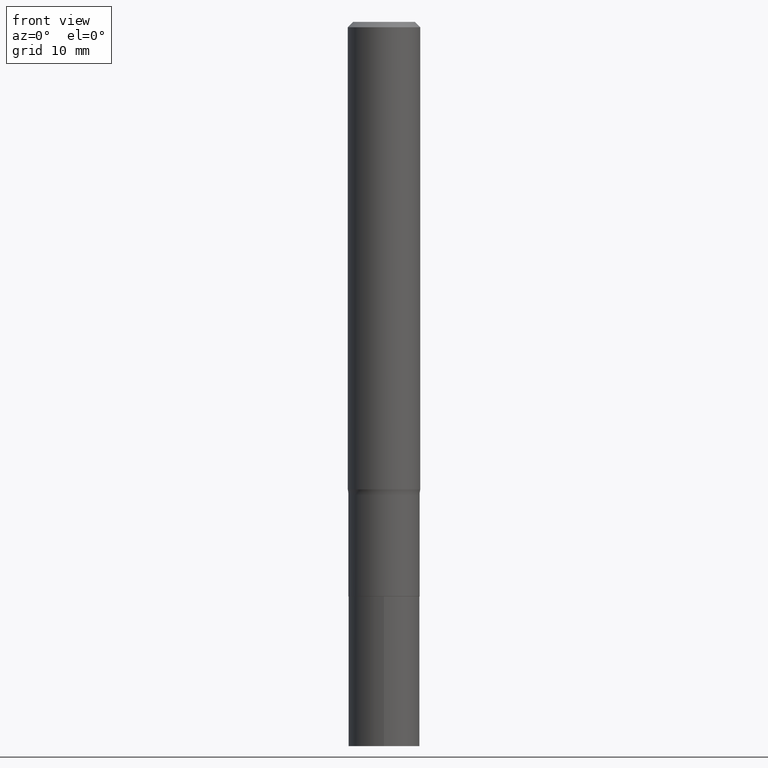
[diagram: clean part render]
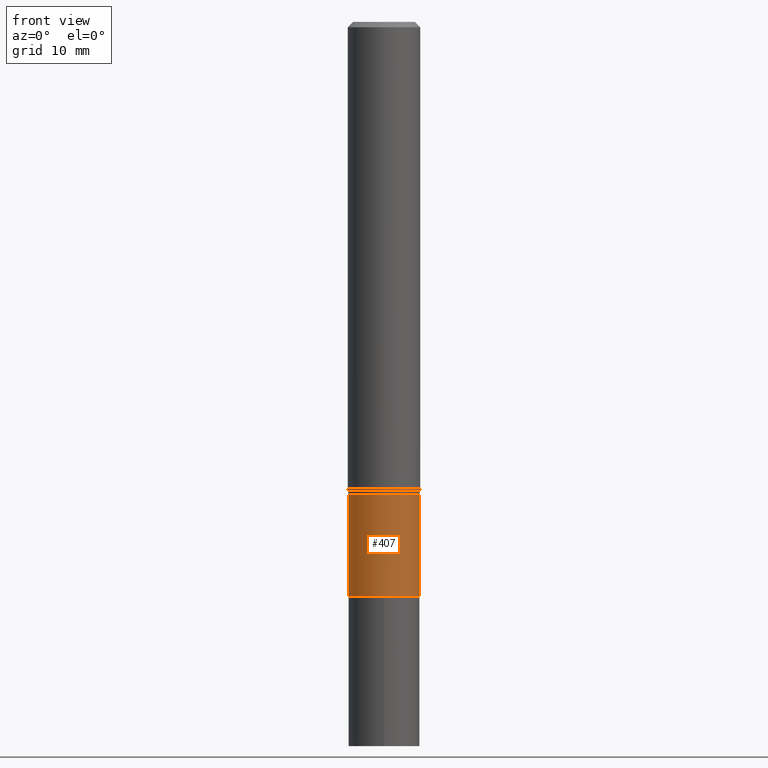
[diagram: same view with one face highlighted and labeled with its STEP entity id]
A machine part, front view. The second image highlights one B-rep face of the part: STEP entity #407.
In plain terms, the highlighted cylindrical surface (edge-blend (fillet) strip) has radius 2.9502 mm, axis along (-0, 0, 1).
Its self-contained STEP definition (entity closure, byte-faithful):
#13 = ORIENTED_EDGE ( 'NONE', *, *, #203, .T. ) ;
#21 = ORIENTED_EDGE ( 'NONE', *, *, #226, .F. ) ;
#55 = EDGE_LOOP ( 'NONE', ( #21, #13, #411, #195 ) ) ;
#57 = AXIS2_PLACEMENT_3D ( 'NONE', #148, #257, #214 ) ;
#66 = VECTOR ( 'NONE', #322, 39.37007874015748143 ) ;
#76 = CARTESIAN_POINT ( 'NONE',  ( 3.771891086659955739E-29, -5.385260817031669568E-15, -1.542400000000000437 ) ) ;
#90 = CIRCLE ( 'NONE', #57, 0.1161499999999999894 ) ;
#96 = VERTEX_POINT ( 'NONE', #440 ) ;
#115 = CYLINDRICAL_SURFACE ( 'NONE', #178, 0.1161499999999999755 ) ;
#123 = DIRECTION ( 'NONE',  ( 1.000000000000000000, -6.982962677686267499E-15, 0.000000000000000000 ) ) ;
#141 = CARTESIAN_POINT ( 'NONE',  ( -0.1161499999999999755, 8.252953875853561917E-16, -5.713343107331072131E-30 ) ) ;
#148 = CARTESIAN_POINT ( 'NONE',  ( 4.582074902149091965E-29, -6.541988584590403587E-15, -1.873700000000000587 ) ) ;
#149 = VERTEX_POINT ( 'NONE', #348 ) ;
#154 = DIRECTION ( 'NONE',  ( -2.445468806185136597E-29, 3.491481338843145583E-15, 1.000000000000000000 ) ) ;
#178 = AXIS2_PLACEMENT_3D ( 'NONE', #294, #154, #406 ) ;
#195 = ORIENTED_EDGE ( 'NONE', *, *, #458, .F. ) ;
#203 = EDGE_CURVE ( 'NONE', #149, #421, #90, .T. ) ;
#214 = DIRECTION ( 'NONE',  ( 1.000000000000000000, -6.982962677686266711E-15, 0.000000000000000000 ) ) ;
#219 = CARTESIAN_POINT ( 'NONE',  ( -0.1161499999999999755, -5.138329313225679991E-15, -1.542400000000000437 ) ) ;
#221 = LINE ( 'NONE', #141, #66 ) ;
#226 = EDGE_CURVE ( 'NONE', #149, #323, #221, .T. ) ;
#229 = DIRECTION ( 'NONE',  ( -2.445468806185136597E-29, 3.491481338843145583E-15, 1.000000000000000000 ) ) ;
#233 = CARTESIAN_POINT ( 'NONE',  ( 0.1161499999999999755, -8.110711150132597459E-16, 5.663679325086977697E-30 ) ) ;
#257 = DIRECTION ( 'NONE',  ( -2.445468806185136597E-29, 3.491481338843145583E-15, 1.000000000000000000 ) ) ;
#260 = CARTESIAN_POINT ( 'NONE',  ( 0.1161499999999999894, -7.353059699603663332E-15, -1.873700000000000587 ) ) ;
#294 = CARTESIAN_POINT ( 'NONE',  ( 0.000000000000000000, 0.000000000000000000, 0.000000000000000000 ) ) ;
#301 = FACE_OUTER_BOUND ( 'NONE', #55, .T. ) ;
#307 = VECTOR ( 'NONE', #369, 39.37007874015748143 ) ;
#322 = DIRECTION ( 'NONE',  ( -2.445468806185136877E-29, 3.491481338843145188E-15, 1.000000000000000000 ) ) ;
#323 = VERTEX_POINT ( 'NONE', #219 ) ;
#332 = LINE ( 'NONE', #233, #307 ) ;
#348 = CARTESIAN_POINT ( 'NONE',  ( -0.1161500000000000032, -5.138329313225679991E-15, -1.873700000000000587 ) ) ;
#369 = DIRECTION ( 'NONE',  ( -2.445468806185136877E-29, 3.491481338843145188E-15, 1.000000000000000000 ) ) ;
#394 = CIRCLE ( 'NONE', #465, 0.1161499999999999755 ) ;
#406 = DIRECTION ( 'NONE',  ( 1.000000000000000000, -6.982962677686266711E-15, 4.876176775795935232E-29 ) ) ;
#407 = ADVANCED_FACE ( 'NONE', ( #301 ), #115, .T. ) ;
#411 = ORIENTED_EDGE ( 'NONE', *, *, #446, .T. ) ;
#421 = VERTEX_POINT ( 'NONE', #260 ) ;
#440 = CARTESIAN_POINT ( 'NONE',  ( 0.1161499999999999755, -6.196331932044929314E-15, -1.542400000000000437 ) ) ;
#446 = EDGE_CURVE ( 'NONE', #421, #96, #332, .T. ) ;
#458 = EDGE_CURVE ( 'NONE', #323, #96, #394, .T. ) ;
#465 = AXIS2_PLACEMENT_3D ( 'NONE', #76, #229, #123 ) ;